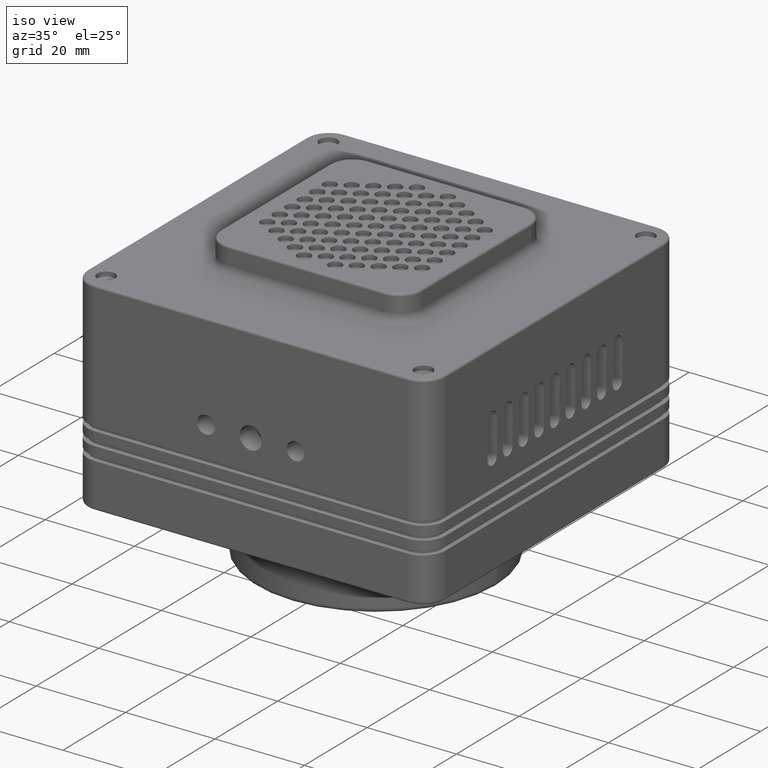
[diagram: clean part render]
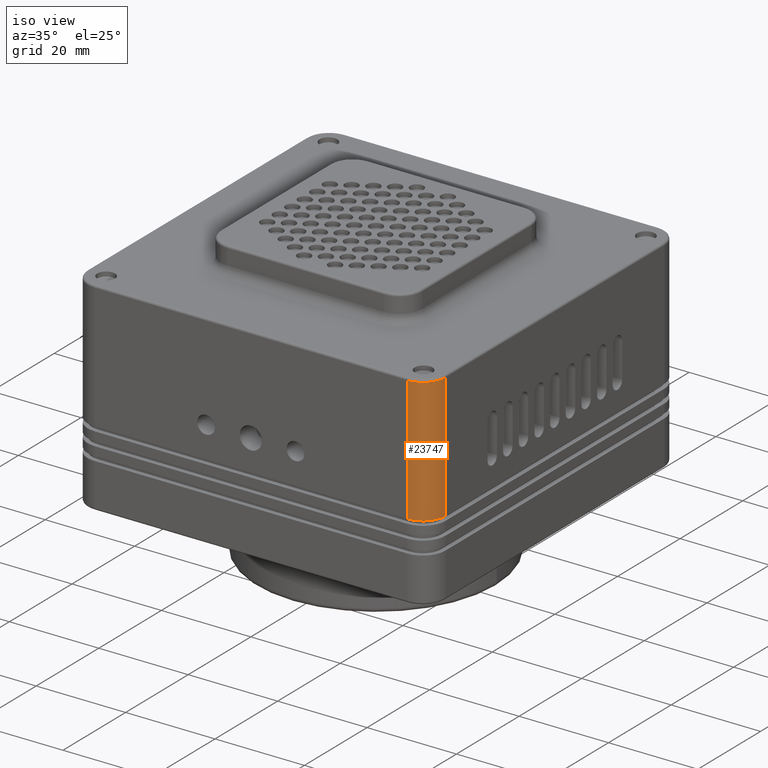
[diagram: same view with one face highlighted and labeled with its STEP entity id]
A machine part, iso view. The second image highlights one B-rep face of the part: STEP entity #23747.
In plain terms, the highlighted cylindrical surface (edge-blend (fillet) strip) has radius 5 mm, axis along (0, 0, -1).
Its self-contained STEP definition (entity closure, byte-faithful):
#95 = CARTESIAN_POINT ( 'NONE',  ( 40.00000000000000000, -35.00000000000000000, 1.199999999999999956 ) ) ;
#340 = DIRECTION ( 'NONE',  ( 1.000000000000000000, 0.000000000000000000, 0.000000000000000000 ) ) ;
#781 = AXIS2_PLACEMENT_3D ( 'NONE', #44155, #43885, #26540 ) ;
#1359 = EDGE_CURVE ( 'NONE', #29619, #4159, #2396, .T. ) ;
#1590 = VERTEX_POINT ( 'NONE', #12855 ) ;
#2396 = LINE ( 'NONE', #36109, #4004 ) ;
#3382 = ORIENTED_EDGE ( 'NONE', *, *, #50013, .F. ) ;
#3632 = CARTESIAN_POINT ( 'NONE',  ( 35.00000000000000000, -40.00000000000000000, 0.000000000000000000 ) ) ;
#4004 = VECTOR ( 'NONE', #43580, 1000.000000000000000 ) ;
#4159 = VERTEX_POINT ( 'NONE', #95 ) ;
#6070 = CYLINDRICAL_SURFACE ( 'NONE', #781, 5.000000000000000888 ) ;
#6960 = CIRCLE ( 'NONE', #22840, 4.999999999999997335 ) ;
#9223 = EDGE_CURVE ( 'NONE', #4159, #35906, #24010, .T. ) ;
#12855 = CARTESIAN_POINT ( 'NONE',  ( 35.00000000000000000, -40.00000000000000000, 29.19999999999999929 ) ) ;
#12999 = DIRECTION ( 'NONE',  ( 0.000000000000000000, 0.000000000000000000, -1.000000000000000000 ) ) ;
#14135 = CARTESIAN_POINT ( 'NONE',  ( 35.00000000000000000, -35.00000000000000000, 29.19999999999999929 ) ) ;
#14619 = FACE_OUTER_BOUND ( 'NONE', #49668, .T. ) ;
#20489 = DIRECTION ( 'NONE',  ( 0.000000000000000000, 0.000000000000000000, 1.000000000000000000 ) ) ;
#22840 = AXIS2_PLACEMENT_3D ( 'NONE', #14135, #42318, #340 ) ;
#23747 = ADVANCED_FACE ( 'NONE', ( #14619 ), #6070, .T. ) ;
#24010 = CIRCLE ( 'NONE', #29405, 5.000000000000000888 ) ;
#24916 = CARTESIAN_POINT ( 'NONE',  ( 35.00000000000000000, -35.00000000000000000, 1.199999999999999956 ) ) ;
#26540 = DIRECTION ( 'NONE',  ( -1.000000000000000000, 0.000000000000000000, 0.000000000000000000 ) ) ;
#29405 = AXIS2_PLACEMENT_3D ( 'NONE', #24916, #12999, #54142 ) ;
#29619 = VERTEX_POINT ( 'NONE', #36466 ) ;
#32868 = VECTOR ( 'NONE', #20489, 1000.000000000000000 ) ;
#35595 = ORIENTED_EDGE ( 'NONE', *, *, #9223, .F. ) ;
#35838 = ORIENTED_EDGE ( 'NONE', *, *, #1359, .F. ) ;
#35906 = VERTEX_POINT ( 'NONE', #38445 ) ;
#36109 = CARTESIAN_POINT ( 'NONE',  ( 40.00000000000000000, -35.00000000000000000, 91.00000000000000000 ) ) ;
#36466 = CARTESIAN_POINT ( 'NONE',  ( 40.00000000000000000, -35.00000000000000000, 29.19999999999999929 ) ) ;
#36882 = ORIENTED_EDGE ( 'NONE', *, *, #38278, .T. ) ;
#38278 = EDGE_CURVE ( 'NONE', #29619, #1590, #6960, .T. ) ;
#38445 = CARTESIAN_POINT ( 'NONE',  ( 35.00000000000000000, -40.00000000000000000, 1.199999999999999956 ) ) ;
#41457 = LINE ( 'NONE', #3632, #32868 ) ;
#42318 = DIRECTION ( 'NONE',  ( 0.000000000000000000, 0.000000000000000000, -1.000000000000000000 ) ) ;
#43580 = DIRECTION ( 'NONE',  ( 0.000000000000000000, 0.000000000000000000, -1.000000000000000000 ) ) ;
#43885 = DIRECTION ( 'NONE',  ( 0.000000000000000000, 0.000000000000000000, -1.000000000000000000 ) ) ;
#44155 = CARTESIAN_POINT ( 'NONE',  ( 35.00000000000000000, -35.00000000000000000, 91.00000000000000000 ) ) ;
#49668 = EDGE_LOOP ( 'NONE', ( #35838, #36882, #3382, #35595 ) ) ;
#50013 = EDGE_CURVE ( 'NONE', #35906, #1590, #41457, .T. ) ;
#54142 = DIRECTION ( 'NONE',  ( -1.000000000000000000, 0.000000000000000000, 0.000000000000000000 ) ) ;